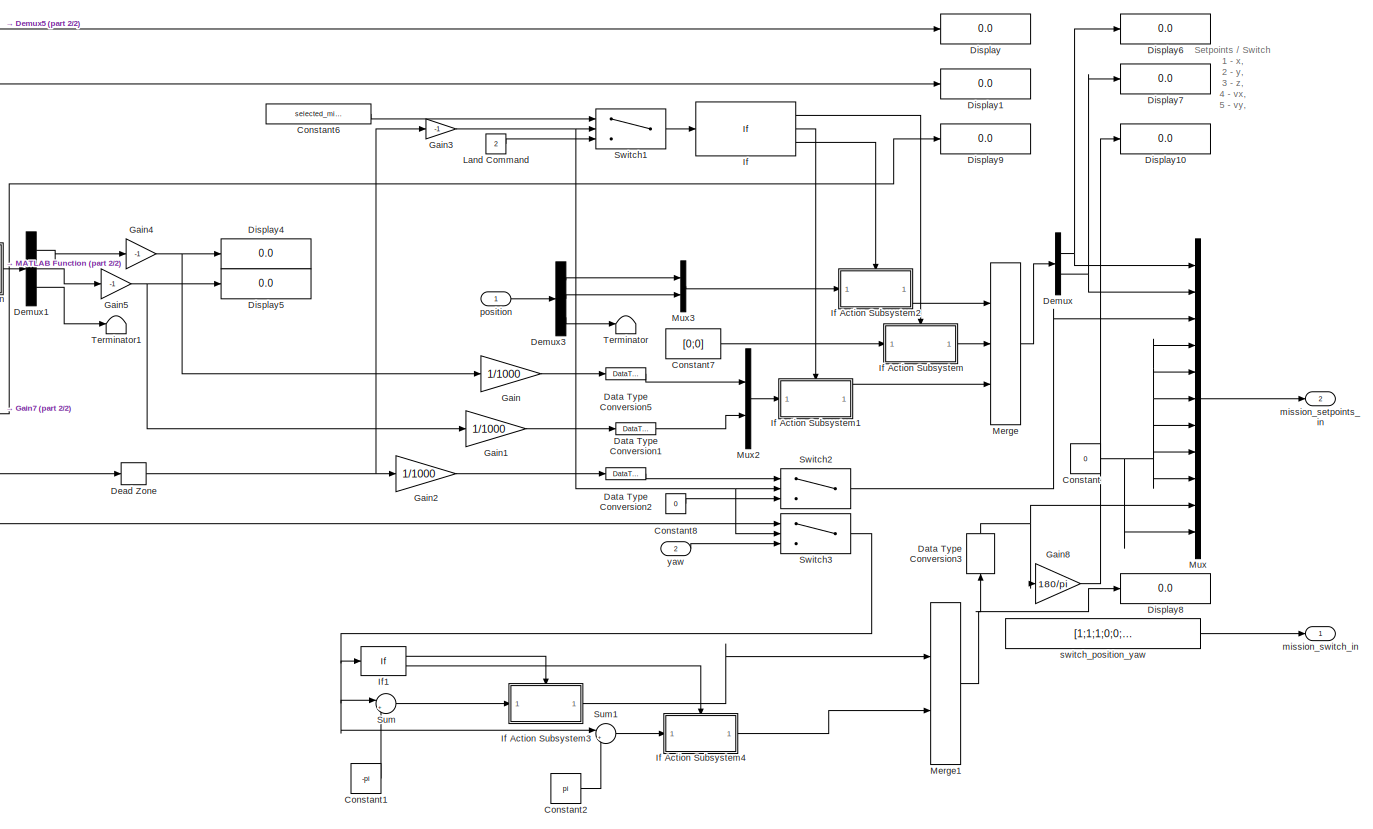
[diagram: root canvas - part 1/2, most of the canvas]
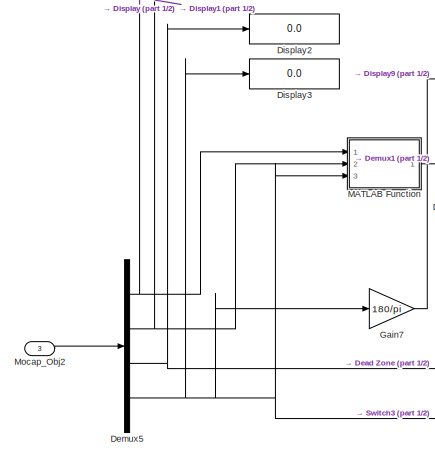
[diagram: root canvas - part 2/2, middle left region]
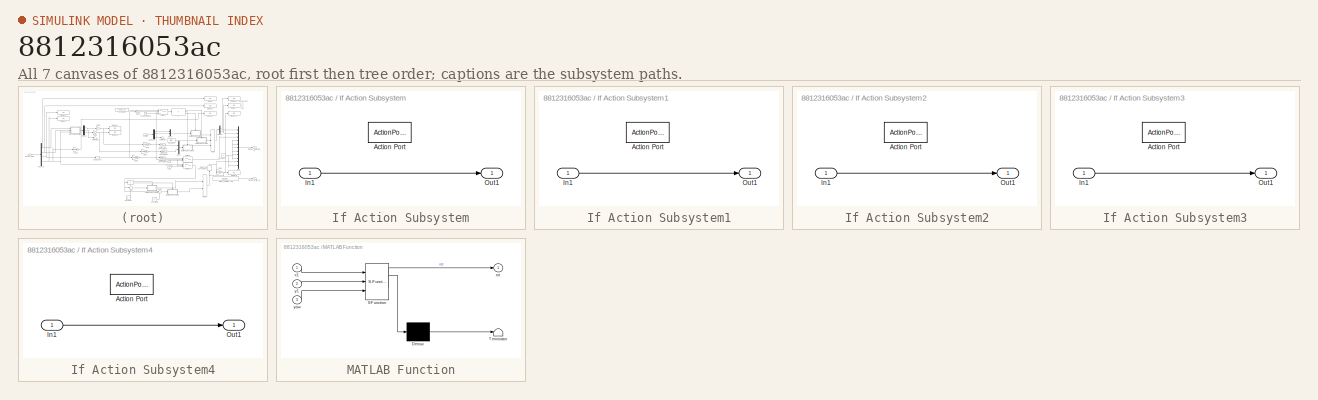
[diagram: thumbnail index - all 7 canvases of the model, root first then tree order]
MODEL slx_8812316053ac
KIND model
CONFIG AbsTol = auto
CONFIG EnableMultiTasking = off
CONFIG FixedStep = auto
CONFIG MaxStep = auto
CONFIG MinStep = auto
CONFIG RelTol = 1e-3
CONFIG SampleTimeConstraint = Unconstrained
CONFIG SolverName = VariableStepAuto
CONFIG StartTime = 0.0
CONFIG StopTime = 10.0
BLOCK [Constant] Constant
  OutDataTypeStr = single
  Value = 0
BLOCK [Constant] Constant1
  Value = -pi
BLOCK [Constant] Constant2
  Value = pi
BLOCK [Constant] Constant6
  Value = selected_mission
BLOCK [Constant] Constant7
  OutDataTypeStr = single
  Value = [0;0]
BLOCK [Constant] Constant8
  OutDataTypeStr = single
  Value = 0
BLOCK [DataTypeConversion] Data Type Conversion1
  OutDataTypeStr = single
  RndMeth = Floor
  SaturateOnIntegerOverflow = off
BLOCK [DataTypeConversion] Data Type Conversion2
  OutDataTypeStr = single
  RndMeth = Floor
  SaturateOnIntegerOverflow = off
BLOCK [DataTypeConversion] Data Type Conversion3
  NameLocation = right
  OutDataTypeStr = single
  RndMeth = Floor
  SaturateOnIntegerOverflow = off
BLOCK [DataTypeConversion] Data Type Conversion5
  OutDataTypeStr = single
  RndMeth = Floor
  SaturateOnIntegerOverflow = off
BLOCK [DeadZone] Dead Zone
  LowerValue = -25
  UpperValue = 25
BLOCK [Demux] Demux
  Outputs = 2
  Ports = [1, 2]
BLOCK [Demux] Demux1
  Outputs = 3
  Ports = [1, 3]
BLOCK [Demux] Demux3
  Outputs = 3
  Ports = [1, 3]
BLOCK [Demux] Demux5
  Ports = [1, 4]
BLOCK [Display] Display
  Decimation = 1
  Ports = [1]
BLOCK [Display] Display1
  Decimation = 1
  Ports = [1]
BLOCK [Display] Display10
  Decimation = 1
  Ports = [1]
BLOCK [Display] Display2
  Decimation = 1
  Ports = [1]
BLOCK [Display] Display3
  Decimation = 1
  Ports = [1]
BLOCK [Display] Display4
  Decimation = 1
  Ports = [1]
BLOCK [Display] Display5
  Decimation = 1
  Ports = [1]
BLOCK [Display] Display6
  Decimation = 1
  Ports = [1]
BLOCK [Display] Display7
  Decimation = 1
  Ports = [1]
BLOCK [Display] Display8
  Decimation = 1
  Ports = [1]
BLOCK [Display] Display9
  Decimation = 1
  Ports = [1]
BLOCK [Gain] Gain
  Gain = 1/1000
BLOCK [Gain] Gain1
  Gain = 1/1000
BLOCK [Gain] Gain2
  Gain = 1/1000
BLOCK [Gain] Gain3
  Gain = -1
BLOCK [Gain] Gain4
  Gain = -1
BLOCK [Gain] Gain5
  Gain = -1
BLOCK [Gain] Gain7
  Gain = 180/pi
BLOCK [Gain] Gain8
  Gain = 180/pi
BLOCK [If] If
  ElseIfExpressions = u1 == 1,u1 == 2
  IfExpression = u1 == 0
  Ports = [1, 3]
  ShowElse = off
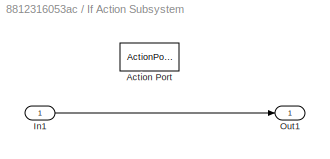
BLOCK [SubSystem] If Action Subsystem
  Ports = [1, 1, 0, 0, 0, 0, 0, 1]
  RequestExecContextInheritance = off
  TreatAsAtomicUnit = on
BLOCK [ActionPort] If Action Subsystem/Action Port
  ActionPortLabel = if(u1 == 0)
BLOCK [Inport] If Action Subsystem/In1
BLOCK [Outport] If Action Subsystem/Out1
  VectorParamsAs1DForOutWhenUnconnected = off
BLOCK [SubSystem] If Action Subsystem1
  Ports = [1, 1, 0, 0, 0, 0, 0, 1]
  RequestExecContextInheritance = off
  TreatAsAtomicUnit = on
BLOCK [ActionPort] If Action Subsystem1/Action Port
  ActionPortLabel = elseif(u1 == 1)
BLOCK [Inport] If Action Subsystem1/In1
BLOCK [Outport] If Action Subsystem1/Out1
  VectorParamsAs1DForOutWhenUnconnected = off
BLOCK [SubSystem] If Action Subsystem2
  Ports = [1, 1, 0, 0, 0, 0, 0, 1]
  RequestExecContextInheritance = off
  TreatAsAtomicUnit = on
BLOCK [ActionPort] If Action Subsystem2/Action Port
  ActionPortLabel = elseif(u1 == 2)
BLOCK [Inport] If Action Subsystem2/In1
BLOCK [Outport] If Action Subsystem2/Out1
  VectorParamsAs1DForOutWhenUnconnected = off
BLOCK [SubSystem] If Action Subsystem3
  Ports = [1, 1, 0, 0, 0, 0, 0, 1]
  RequestExecContextInheritance = off
  TreatAsAtomicUnit = on
BLOCK [ActionPort] If Action Subsystem3/Action Port
  ActionPortLabel = if(u1 > 0)
BLOCK [Inport] If Action Subsystem3/In1
BLOCK [Outport] If Action Subsystem3/Out1
  VectorParamsAs1DForOutWhenUnconnected = off
BLOCK [SubSystem] If Action Subsystem4
  Ports = [1, 1, 0, 0, 0, 0, 0, 1]
  RequestExecContextInheritance = off
  TreatAsAtomicUnit = on
BLOCK [ActionPort] If Action Subsystem4/Action Port
  ActionPortLabel = else
BLOCK [Inport] If Action Subsystem4/In1
BLOCK [Outport] If Action Subsystem4/Out1
  VectorParamsAs1DForOutWhenUnconnected = off
BLOCK [If] If1
  Ports = [1, 2]
BLOCK [Constant] Land Command
  Value = 2
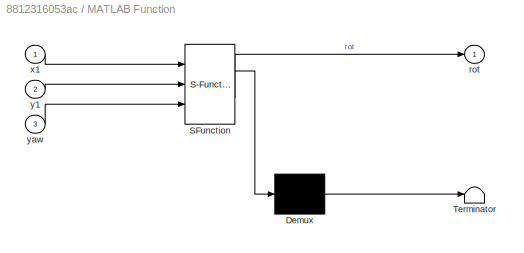
BLOCK [SubSystem] MATLAB Function
  ErrorFcn = Stateflow.Translate.translate
  PermitHierarchicalResolution = ExplicitOnly
  Ports = [3, 1]
  RequestExecContextInheritance = off
  SFBlockType = MATLAB Function
  TreatAsAtomicUnit = on
BLOCK [Demux] MATLAB Function/ Demux 
  Outputs = 1
  Ports = [1, 1]
BLOCK [S-Function] MATLAB Function/ SFunction 
  EnableBusSupport = off
  FunctionName = sf_sfun
  PortCounts = [3 2]
  Ports = [3, 2]
  SFcnIsStateOwnerBlock = off
  SFunctionDeploymentMode = off
  Tag = Stateflow S-Function 2
BLOCK [Terminator] MATLAB Function/ Terminator 
BLOCK [Outport] MATLAB Function/rot
BLOCK [Inport] MATLAB Function/x1
BLOCK [Inport] MATLAB Function/y1
  Port = 2
BLOCK [Inport] MATLAB Function/yaw
  Port = 3
BLOCK [Merge] Merge
  Inputs = 3
  Ports = [3, 1]
BLOCK [Merge] Merge1
  Ports = [2, 1]
BLOCK [Inport] Mocap_Obj2
  Port = 3
BLOCK [Mux] Mux
  DisplayOption = bar
  Inputs = 11
  Ports = [11, 1]
BLOCK [Mux] Mux2
  DisplayOption = bar
  Inputs = 2
  Ports = [2, 1]
BLOCK [Mux] Mux3
  DisplayOption = bar
  Inputs = 2
  Ports = [2, 1]
BLOCK [Sum] Sum
  Inputs = |++
  Ports = [2, 1]
BLOCK [Sum] Sum1
  Inputs = |++
  Ports = [2, 1]
BLOCK [Switch] Switch1
  Criteria = u2 > Threshold
  InputSameDT = off
  SaturateOnIntegerOverflow = off
  Threshold = 25
BLOCK [Switch] Switch2
  Criteria = u2 > Threshold
  InputSameDT = off
  SaturateOnIntegerOverflow = off
  Threshold = 25
BLOCK [Switch] Switch3
  Criteria = u2 > Threshold
  InputSameDT = off
  SaturateOnIntegerOverflow = off
  Threshold = 25
BLOCK [Terminator] Terminator
BLOCK [Terminator] Terminator1
BLOCK [Outport] mission_setpoints_in
  Port = 2
  VectorParamsAs1DForOutWhenUnconnected = off
BLOCK [Outport] mission_switch_in
  VectorParamsAs1DForOutWhenUnconnected = off
BLOCK [Inport] position
BLOCK [Constant] switch_position_yaw
  OutDataTypeStr = single
  Value = [1;1;1;0;0;0;0;0;0;1;0]
BLOCK [Inport] yaw
  Port = 2
ANNOTATION (root): Setpoints / Switch 1 - x, 2 - y, 3 - z, 4 - vx, 5 - vy, 6 - vz, 7 - ax, 8 - ay, 9 - az, 10 - yaw, 11 - yaw rate
LINE Constant1:1 -> Sum:2
LINE Constant2:1 -> Sum1:2
LINE Constant6:1 -> Switch1:1
LINE Constant7:1 -> If Action Subsystem:1
LINE Constant8:1 -> Switch2:3
NET Constant:1 -> Mux:11, Mux:4, Mux:5, Mux:6, Mux:7, Mux:8, Mux:9
LINE Data Type Conversion1:1 -> Mux2:2
LINE Data Type Conversion2:1 -> Switch2:1
NET Data Type Conversion3:1 -> Gain8:1, Mux:10
LINE Data Type Conversion5:1 -> Mux2:1
NET Dead Zone:1 -> Gain2:1, Gain3:1
LINE Demux1:1 -> Gain4:1
LINE Demux1:2 -> Gain5:1
LINE Demux1:3 -> Terminator1:1
LINE Demux3:1 -> Mux3:1
LINE Demux3:2 -> Mux3:2
LINE Demux3:3 -> Terminator:1
NET Demux5:1 -> Display:1, MATLAB Function:1
NET Demux5:2 -> Display1:1, MATLAB Function:2
NET Demux5:3 -> Dead Zone:1, Display2:1
NET Demux5:4 -> Display3:1, Gain7:1, MATLAB Function:3, Switch3:1
NET Demux:1 -> Display6:1, Mux:1
NET Demux:2 -> Display7:1, Mux:2
LINE Gain1:1 -> Data Type Conversion1:1
LINE Gain2:1 -> Data Type Conversion2:1
NET Gain3:1 -> Switch1:2, Switch2:2, Switch3:2
NET Gain4:1 -> Display4:1, Gain:1
NET Gain5:1 -> Display5:1, Gain1:1
LINE Gain7:1 -> Display9:1
LINE Gain8:1 -> Display10:1
LINE Gain:1 -> Data Type Conversion5:1
LINE If Action Subsystem/In1:1 -> If Action Subsystem/Out1:1
LINE If Action Subsystem1/In1:1 -> If Action Subsystem1/Out1:1
LINE If Action Subsystem1:1 -> Merge:3
LINE If Action Subsystem2/In1:1 -> If Action Subsystem2/Out1:1
LINE If Action Subsystem2:1 -> Merge:1
LINE If Action Subsystem3/In1:1 -> If Action Subsystem3/Out1:1
LINE If Action Subsystem3:1 -> Merge1:1
LINE If Action Subsystem4/In1:1 -> If Action Subsystem4/Out1:1
LINE If Action Subsystem4:1 -> Merge1:2
LINE If Action Subsystem:1 -> Merge:2
LINE If1:1 -> If Action Subsystem3:ifaction
LINE If1:2 -> If Action Subsystem4:ifaction
LINE If:1 -> If Action Subsystem:ifaction
LINE If:2 -> If Action Subsystem1:ifaction
LINE If:3 -> If Action Subsystem2:ifaction
LINE Land Command:1 -> Switch1:3
LINE MATLAB Function:1 -> Demux1:1
NET Merge1:1 -> Data Type Conversion3:1, Display8:1
LINE Merge:1 -> Demux:1
LINE Mocap_Obj2:1 -> Demux5:1
LINE Mux2:1 -> If Action Subsystem1:1
LINE Mux3:1 -> If Action Subsystem2:1
LINE Mux:1 -> mission_setpoints_in:1
LINE Sum1:1 -> If Action Subsystem4:1
LINE Sum:1 -> If Action Subsystem3:1
LINE Switch1:1 -> If:1
LINE Switch2:1 -> Mux:3
NET Switch3:1 -> If1:1, Sum1:1, Sum:1
LINE position:1 -> Demux3:1
LINE switch_position_yaw:1 -> mission_switch_in:1
LINE yaw:1 -> Switch3:3
note: NET lines group one-source signal fan-out (src -> all destinations, sorted); 1:1 wires keep LINE
CHART MATLAB Function states=1 transitions=1
  STATE_LABEL 'eML_blk_kernel()'
  STATE_LABEL 'SCRIPT:\nfunction rot = fcn(x1,y1,yaw)\ninv_rot_tra = [cos(-yaw) sin(-yaw) -x1; -sin(-yaw) cos(-yaw) -y1; 0 0 1];\nrot = inv_rot_tra*[0; 30; 1];\nrot(1)\n'
CHART  states=0 transitions=0
